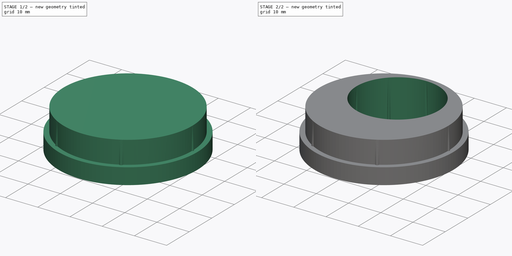
[diagram: build sequence overview — one tinted view per stage of 2, left to right]
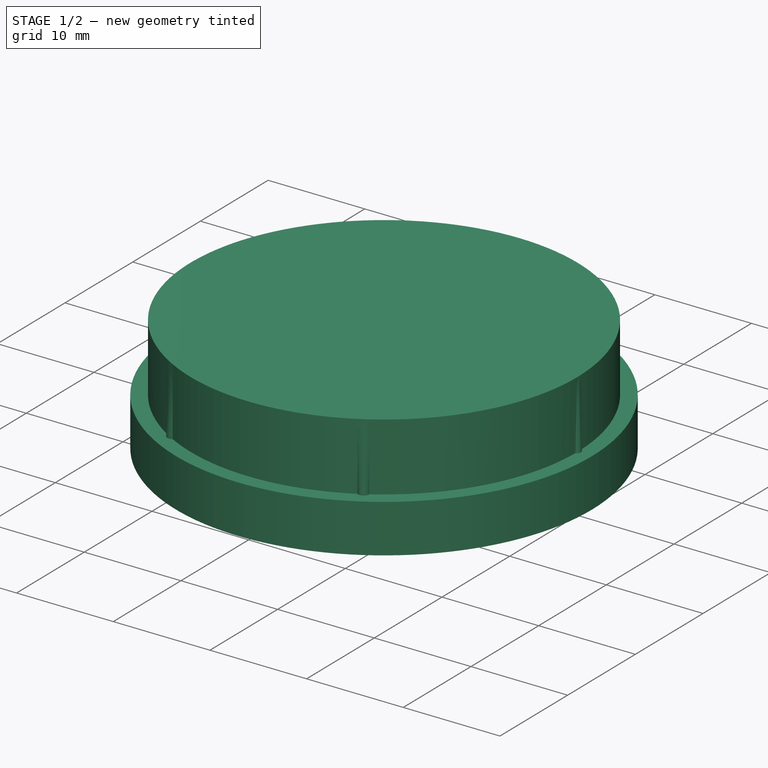
[diagram: stage 1 of 2 — iso view after this stage's code; geometry added in this stage tinted green]
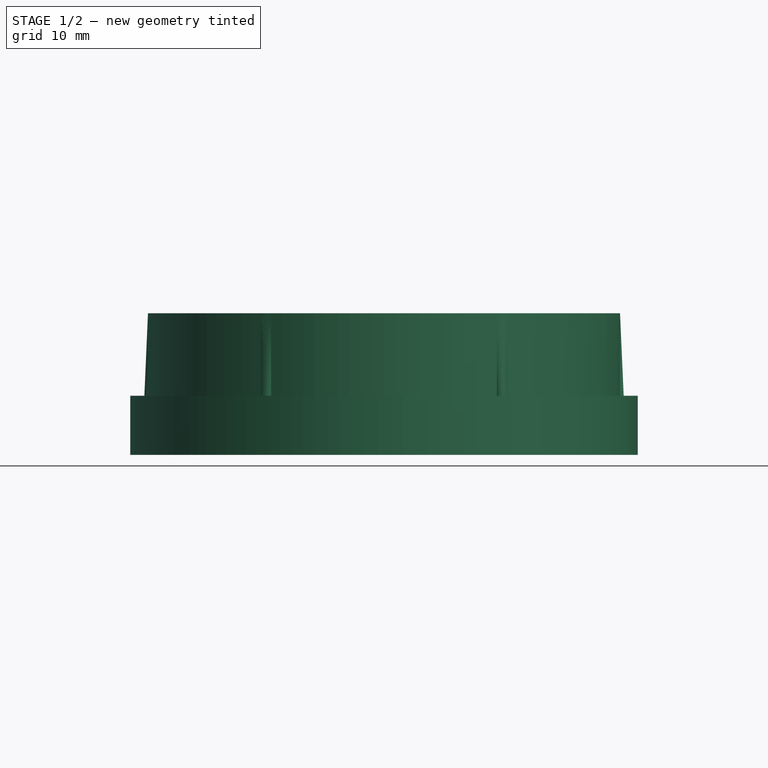
[diagram: stage 1 of 2 — front view after this stage's code; geometry added in this stage tinted green]
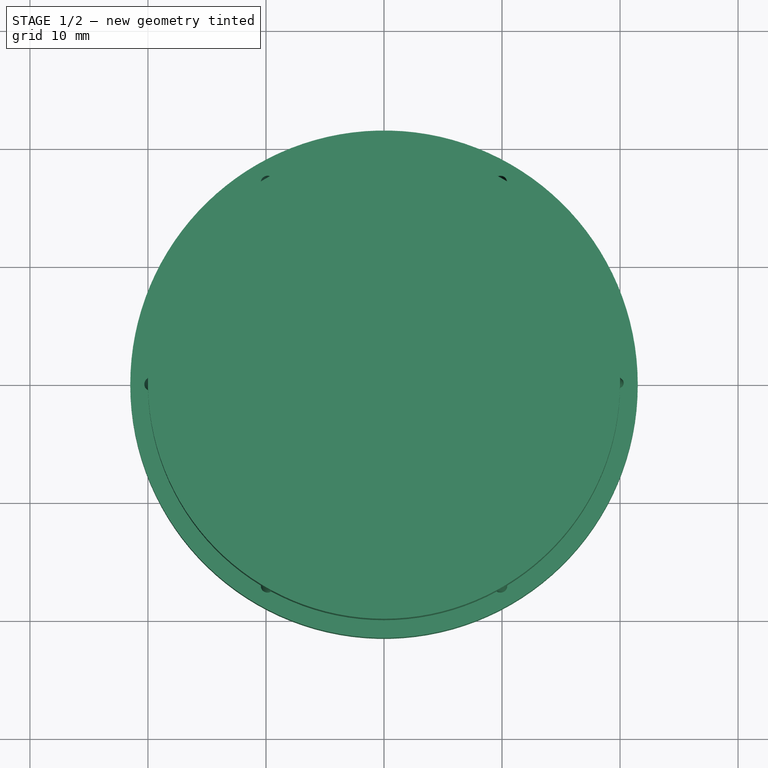
[diagram: stage 1 of 2 — top view after this stage's code; geometry added in this stage tinted green]
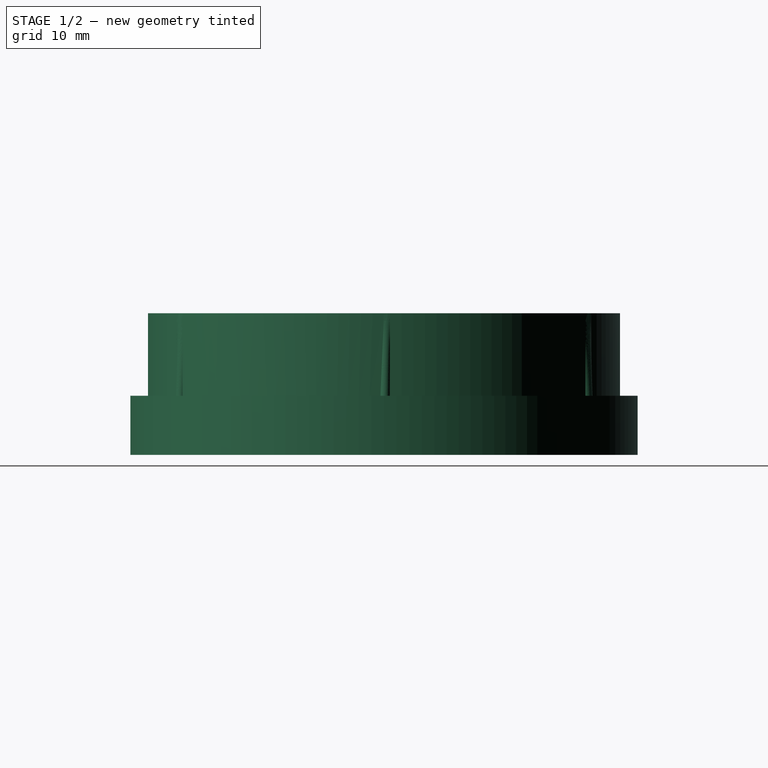
[diagram: stage 1 of 2 — right view after this stage's code; geometry added in this stage tinted green]
FCSTD DOCUMENT  (FreeCAD 1.0R39109 (Git))
Label: samlabox_castor_wheel
License: All rights reserved
LicenseURL: https://en.wikipedia.org/wiki/All_rights_reserved
objects: Sketcher::SketchObject×5, Spreadsheet::Sheet×1, PartDesign::Pad×1, PartDesign::AdditiveLoft×1, PartDesign::SubtractiveLoft×1, PartDesign::Line×1, PartDesign::PolarPattern×1, PartDesign::Body×1
note: 23 computed .brp shape members not serialized (recipe doc carries the construction recipe); baked Part::Feature solids carry a one-line shape summary decoded from their .brp

FEATURE [Spreadsheet::Sheet] Spreadsheet
  cells = A1='Bearing dia; B1(bearing_dia)=40; C1='Wheel hole dia; D1(wheel_hole_dia)=25.5; A2='Bearing thickness; B2(bearing_thi)=7; C2='Wheel offset; D2(wheel_offset)=6; A3='Bearing lip dia; B3(bearing_lip_dia)=43; C3='Notch depth; D3(WheelNotchDepth)=0.4; A4='Bearing lip thickness; B4(bearing_lip_thi)=5; A5='Notch thickness; B5(notch_thi)=0.5; A8='top height; B8(top_hei)==bearing_lip_thi + bearing_thi
FEATURE [Sketcher::SketchObject] Sketch
  ArcFitTolerance = 1e-06
  AttachmentSupport = -> [XY_Plane]
  FullyConstrained = true
  MakeInternals = false
  MapMode = 5
  expr: Constraints[1] = Spreadsheet.bearing_lip_dia
  sketch-geometry (1):
    g0: Circle CenterX=0 CenterY=0 CenterZ=0 NormalX=0 NormalY=0 NormalZ=1 AngleXU=0 Radius=21.5
  constraints (2):
    c: Coincident(g0,g-1)
    c: Diameter(g0) = 43
FEATURE [PartDesign::Pad] Pad  label="bearing_lip"
  Direction = (0,0,1)
  Length = 5
  Length2 = 10
  Profile = -> Sketch [Edge1]
  ReferenceAxis = -> Sketch [N_Axis]
  Refine = true
  Suppressed = false
  Type = 0
  expr: Length = Spreadsheet.bearing_lip_thi
FEATURE [Sketcher::SketchObject] Sketch001
  ArcFitTolerance = 1e-06
  AttachmentOffset = pos=(0,0,0.6) rot=(0,0,1;0rad)
  AttachmentSupport = -> [XY_Plane]
  FullyConstrained = true
  MakeInternals = false
  MapMode = 5
  Placement = pos=(0,0,0.6) rot=(0,0,1;0rad)
  expr: Constraints[1] = Spreadsheet.bearing_dia
  expr: Constraints[23] = Spreadsheet.notch_thi
  sketch-geometry (20):
    g0: Circle [constr] CenterX=0 CenterY=0 CenterZ=0 NormalX=0 NormalY=0 NormalZ=1 AngleXU=0 Radius=20
    g1: LineSegment [constr] StartX=10 StartY=-17.3205 StartZ=0 EndX=20 EndY=0 EndZ=0
    g2: LineSegment [constr] StartX=20 StartY=0 StartZ=0 EndX=10 EndY=17.3205 EndZ=0
    g3: LineSegment [constr] StartX=10 StartY=17.3205 StartZ=0 EndX=-10 EndY=17.3205 EndZ=0
    g4: LineSegment [constr] StartX=-10 StartY=17.3205 StartZ=0 EndX=-20 EndY=-3.6e-15 EndZ=0
    g5: LineSegment [constr] StartX=-20 StartY=-3.6e-15 StartZ=0 EndX=-10 EndY=-17.3205 EndZ=0
    g6: LineSegment [constr] StartX=-10 StartY=-17.3205 StartZ=0 EndX=10 EndY=-17.3205 EndZ=0
    g7: Circle [constr] CenterX=0 CenterY=0 CenterZ=0 NormalX=0 NormalY=0 NormalZ=1 AngleXU=0 Radius=20
    g8: ArcOfCircle CenterX=-20 CenterY=-3.6e-15 CenterZ=0 NormalX=0 NormalY=0 NormalZ=1 AngleXU=0 Radius=0.5 StartAngle=1.5583 EndAngle=4.72489
    g9: ArcOfCircle CenterX=-10 CenterY=-17.3205 CenterZ=0 NormalX=0 NormalY=0 NormalZ=1 AngleXU=0 Radius=0.5 StartAngle=2.60549 EndAngle=5.77209
    g10: ArcOfCircle CenterX=10 CenterY=-17.3205 CenterZ=0 NormalX=0 NormalY=0 NormalZ=1 AngleXU=0 Radius=0.5 StartAngle=3.65269 EndAngle=6.81928
    g11: ArcOfCircle CenterX=20 CenterY=0 CenterZ=0 NormalX=0 NormalY=0 NormalZ=1 AngleXU=0 Radius=0.5 StartAngle=4.69989 EndAngle=7.86648
    g12: ArcOfCircle CenterX=10 CenterY=17.3205 CenterZ=0 NormalX=0 NormalY=0 NormalZ=1 AngleXU=0 Radius=0.5 StartAngle=5.74709 EndAngle=8.91368
    g13: ArcOfCircle CenterX=-10 CenterY=17.3205 CenterZ=0 NormalX=0 NormalY=0 NormalZ=1 AngleXU=0 Radius=0.5 StartAngle=0.511098 EndAngle=3.67769
    g14: ArcOfCircle CenterX=5.262e-13 CenterY=3.352e-13 CenterZ=0 NormalX=0 NormalY=0 NormalZ=1 AngleXU=0 Radius=20 StartAngle=3.16659 EndAngle=4.16379
    g15: ArcOfCircle CenterX=5.236e-13 CenterY=-3.409e-13 CenterZ=0 NormalX=0 NormalY=0 NormalZ=1 AngleXU=0 Radius=20 StartAngle=2.1194 EndAngle=3.11659
    g16: ArcOfCircle CenterX=-5.46e-14 CenterY=-6.222e-13 CenterZ=0 NormalX=0 NormalY=0 NormalZ=1 AngleXU=0 Radius=20 StartAngle=1.0722 EndAngle=2.06939
    g17: ArcOfCircle CenterX=-5.443e-13 CenterY=-2.837e-13 CenterZ=0 NormalX=0 NormalY=0 NormalZ=1 AngleXU=0 Radius=20 StartAngle=0.0250007 EndAngle=1.0222
    g18: ArcOfCircle CenterX=-5.47e-13 CenterY=2.797e-13 CenterZ=0 NormalX=0 NormalY=0 NormalZ=1 AngleXU=0 Radius=20 StartAngle=5.26099 EndAngle=6.25818
    g19: ArcOfCircle CenterX=-5.79e-14 CenterY=6.22e-13 CenterZ=0 NormalX=0 NormalY=0 NormalZ=1 AngleXU=0 Radius=20 StartAngle=4.21379 EndAngle=5.21099
  constraints (60):
    c: Coincident(g0,g-1)
    c: Diameter(g0) = 40
    c: Coincident(g1,g2)
    c: Coincident(g2,g3)
    c: Coincident(g3,g4)
    c: Coincident(g4,g5)
    c: Coincident(g5,g6)
    c: Coincident(g6,g1)
    c: Equal(g1, g2-g6) x5
    c: PointOnObject(g1,g7)
    c: PointOnObject(g2,g7)
    c: PointOnObject(g3,g7)
    c: PointOnObject(g4,g7)
    c: PointOnObject(g5,g7)
    c: PointOnObject(g6,g7)
    c: Coincident(g7,g0)
    c: PointOnObject(g1,g-1)
    c: PointOnObject(g4,g0)
    c: Coincident(g8,g4)
    c: Radius(g8) = 0.5
    c: PointOnObject(g8,g0)
    c: PointOnObject(g8,g0)
    c: Coincident(g9,g5)
    c: PointOnObject(g9,g0)
    c: PointOnObject(g9,g0)
    c: Coincident(g10,g1)
    c: PointOnObject(g10,g0)
    c: PointOnObject(g10,g0)
    c: Coincident(g11,g1)
    c: PointOnObject(g11,g0)
    c: PointOnObject(g11,g0)
    c: Coincident(g12,g2)
    c: PointOnObject(g12,g0)
    c: PointOnObject(g12,g0)
    c: Coincident(g13,g3)
    c: PointOnObject(g13,g0)
    c: PointOnObject(g13,g0)
    c: Equal(g8,g13)
    c: Equal(g8,g12)
    c: Equal(g8,g11)
    c: Equal(g8,g10)
    c: Equal(g8,g9)
    c: Equal(g14,g0)
    c: Coincident(g14,g8)
    c: Coincident(g14,g9)
    c: Equal(g15,g0)
    c: Coincident(g15,g8)
    c: Coincident(g15,g13)
    c: Equal(g16,g0)
    c: Coincident(g16,g12)
    c: Coincident(g16,g13)
    c: Equal(g17,g0)
    c: Coincident(g17,g12)
    c: Coincident(g17,g11)
    c: Equal(g19,g0)
    c: Coincident(g19,g9)
    c: Coincident(g19,g10)
    c: Equal(g18,g0)
    c: Coincident(g18,g10)
    c: Coincident(g18,g11)
FEATURE [Sketcher::SketchObject] Sketch002
  ArcFitTolerance = 1e-06
  AttachmentOffset = pos=(0,0,12) rot=(0,0,1;0rad)
  AttachmentSupport = -> [XY_Plane]
  FullyConstrained = true
  MakeInternals = false
  MapMode = 5
  Placement = pos=(0,0,12) rot=(0,0,1;0rad)
  expr: .AttachmentOffset.Base.z = Spreadsheet.top_hei
  expr: Constraints[1] = Spreadsheet.bearing_dia
  sketch-geometry (1):
    g0: Circle CenterX=0 CenterY=0 CenterZ=0 NormalX=0 NormalY=0 NormalZ=1 AngleXU=0 Radius=20
  constraints (2):
    c: Coincident(g0,g-1)
    c: Diameter(g0) = 40
FEATURE [PartDesign::AdditiveLoft] AdditiveLoft  label="top_body"
  BaseFeature = -> Pad
  Closed = false
  Profile = -> Sketch002
  Refine = true
  Ruled = false
  Sections = -> [Sketch001]
  Suppressed = false
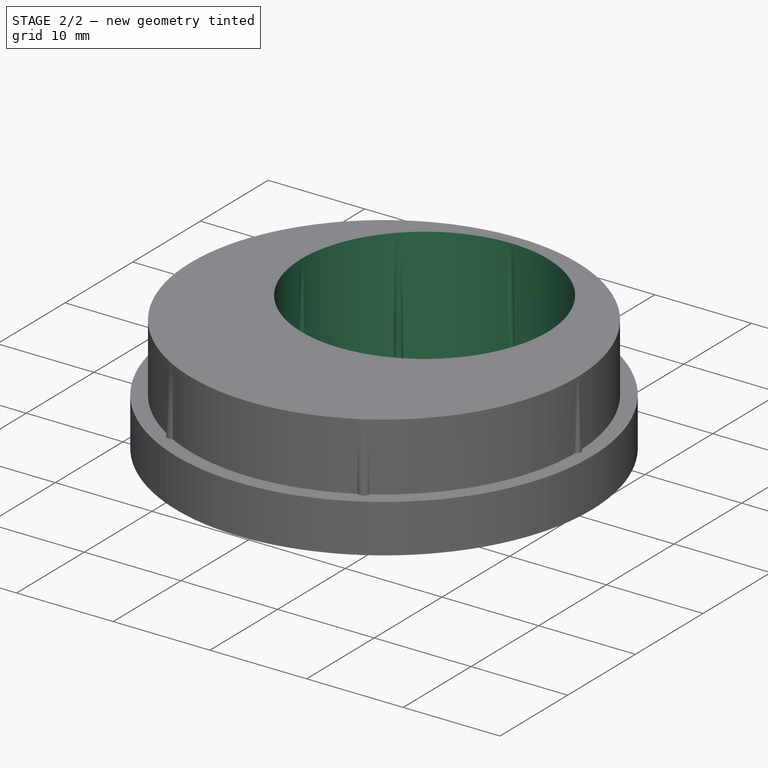
[diagram: stage 2 of 2 — iso view after this stage's code; geometry added in this stage tinted green]
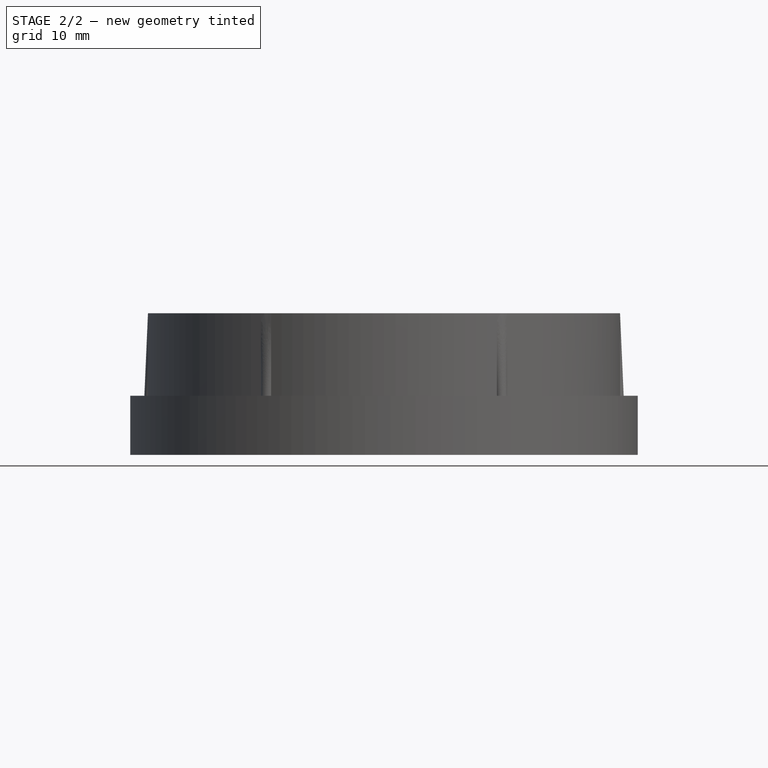
[diagram: stage 2 of 2 — front view after this stage's code; geometry added in this stage tinted green]
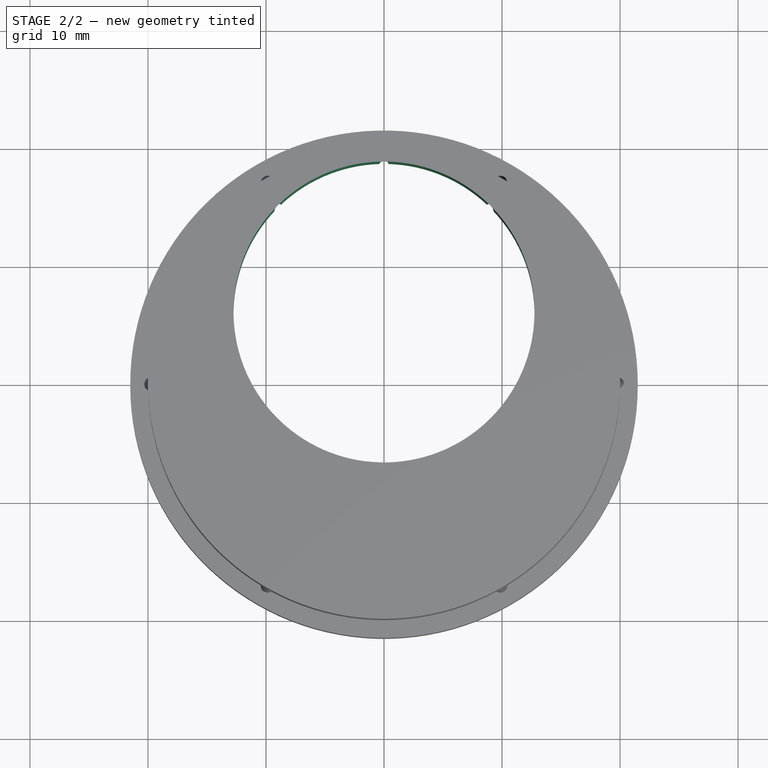
[diagram: stage 2 of 2 — top view after this stage's code; geometry added in this stage tinted green]
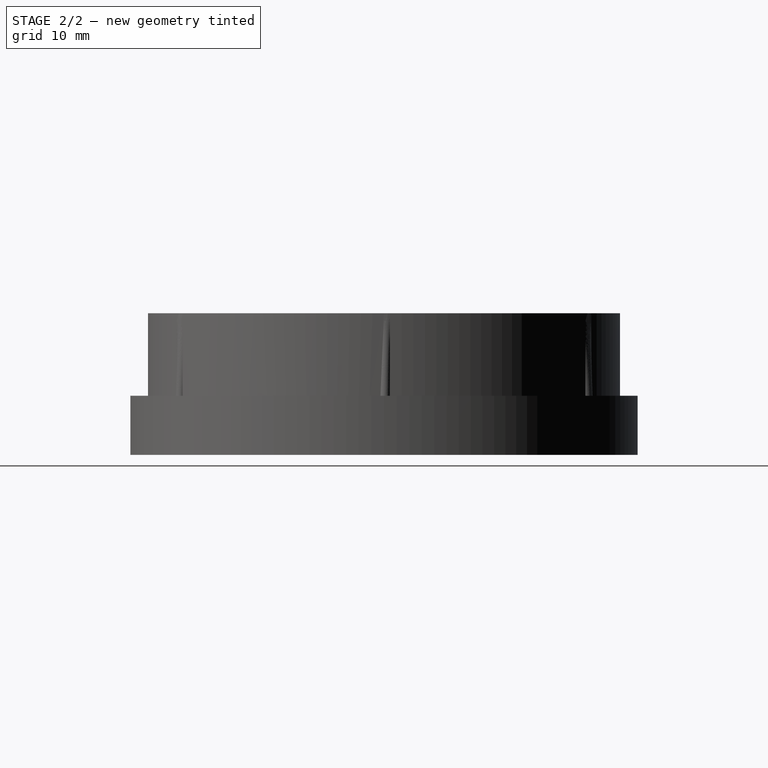
[diagram: stage 2 of 2 — right view after this stage's code; geometry added in this stage tinted green]
FEATURE [Sketcher::SketchObject] Sketch003
  ArcFitTolerance = 1e-06
  AttachmentOffset = pos=(0,0,12) rot=(0,0,1;0rad)
  AttachmentSupport = -> [XY_Plane]
  FullyConstrained = true
  MakeInternals = false
  MapMode = 5
  Placement = pos=(0,0,12) rot=(0,0,1;0rad)
  expr: .AttachmentOffset.Base.z = Spreadsheet.top_hei
  expr: Constraints[1] = Spreadsheet.wheel_offset
  expr: Constraints[9] = Spreadsheet.wheel_hole_dia
  sketch-geometry (4):
    g0: GeomPoint X=0 Y=6 Z=0
    g1: ArcOfCircle CenterX=0 CenterY=6 CenterZ=0 NormalX=0 NormalY=0 NormalZ=1 AngleXU=0 Radius=12.75 StartAngle=2.35619 EndAngle=3.14159
    g2: LineSegment StartX=0 StartY=6 StartZ=0 EndX=-12.75 EndY=6 EndZ=0
    g3: LineSegment StartX=0 StartY=6 StartZ=0 EndX=-9.01561 EndY=15.0156 EndZ=0
  constraints (10):
    c: PointOnObject(g0,g-2)
    c: DistanceY(g-1,g0) = 6
    c: Coincident(g1,g0)
    c: Horizontal(g1,g0)
    c: Coincident(g2,g0)
    c: Coincident(g2,g1)
    c: Coincident(g3,g0)
    c: Coincident(g3,g1)
    c: Angle(g3,g2) = 0.785398
    c: Diameter(g1) = 25.5
FEATURE [Sketcher::SketchObject] Sketch004
  ArcFitTolerance = 1e-06
  AttachmentSupport = -> [AdditiveLoft]
  FullyConstrained = true
  MakeInternals = false
  MapMode = 5
  Placement = pos=(0,0,0) rot=(1,0,0;3.14159rad)
  expr: Constraints[14] = Spreadsheet.WheelNotchDepth
  expr: Constraints[1] = Spreadsheet.wheel_offset
  expr: Constraints[9] = Spreadsheet.wheel_hole_dia
  sketch-geometry (11):
    g0: GeomPoint X=0 Y=-6 Z=0
    g1: ArcOfCircle [constr] CenterX=0 CenterY=-6 CenterZ=0 NormalX=0 NormalY=0 NormalZ=1 AngleXU=0 Radius=12.75 StartAngle=3.14159 EndAngle=3.92699
    g2: LineSegment [constr] StartX=0 StartY=-6 StartZ=0 EndX=-12.75 EndY=-6 EndZ=0
    g3: LineSegment [constr] StartX=0 StartY=-6 StartZ=0 EndX=-9.01561 EndY=-15.0156 EndZ=0
    g4: LineSegment [constr] StartX=-12.75 StartY=-6 StartZ=0 EndX=-13.15 EndY=-6 EndZ=0
    g5: LineSegment [constr] StartX=-9.01561 StartY=-15.0156 StartZ=0 EndX=-9.29845 EndY=-15.2985 EndZ=0
    g6: ArcOfCircle CenterX=-12.75 CenterY=-6 CenterZ=0 NormalX=0 NormalY=0 NormalZ=1 AngleXU=0 Radius=0.4 StartAngle=3.14159 EndAngle=4.72808
    g7: ArcOfCircle CenterX=-9.01561 CenterY=-15.0156 CenterZ=0 NormalX=0 NormalY=0 NormalZ=1 AngleXU=0 Radius=0.4 StartAngle=2.34051 EndAngle=3.92699
    g8: ArcOfCircle CenterX=0 CenterY=-6 CenterZ=0 NormalX=0 NormalY=0 NormalZ=1 AngleXU=0 Radius=12.75 StartAngle=3.17297 EndAngle=3.89562
    g9: LineSegment StartX=0 StartY=-6 StartZ=0 EndX=-13.15 EndY=-6 EndZ=0
    g10: LineSegment StartX=0 StartY=-6 StartZ=0 EndX=-9.29845 EndY=-15.2985 EndZ=0
  constraints (28):
    c: PointOnObject(g0,g-2)
    c: DistanceY(g0,g-1) = 6
    c: Coincident(g1,g0)
    c: Horizontal(g1,g0)
    c: Coincident(g2,g0)
    c: Coincident(g2,g1)
    c: Coincident(g3,g0)
    c: Coincident(g3,g1)
    c: Angle(g2,g3) = 0.785398
    c: Diameter(g1) = 25.5
    c: Coincident(g4,g1)
    c: Coincident(g5,g1)
    c: Parallel(g3,g5)
    c: Parallel(g4,g2)
    c: Distance(g4,g1) = 0.4
    c: Equal(g4,g5)
    c: Coincident(g6,g1)
    c: Coincident(g6,g4)
    c: PointOnObject(g6,g1)
    c: Coincident(g7,g1)
    c: Coincident(g7,g5)
    c: Coincident(g8,g0)
    c: Coincident(g8,g6)
    c: Coincident(g8,g7)
    c: Coincident(g9,g0)
    c: Coincident(g9,g4)
    c: Coincident(g10,g0)
    c: Coincident(g10,g5)
FEATURE [PartDesign::SubtractiveLoft] SubtractiveLoft
  BaseFeature = -> AdditiveLoft
  Closed = false
  Profile = -> Sketch004
  Refine = true
  Ruled = false
  Sections = -> [Sketch003]
  Suppressed = false
FEATURE [PartDesign::Line] DatumLine
  AttacherType = Attacher::AttachEngineLine
  AttachmentOffset = pos=(0,6,0) rot=(0,0,1;0rad)
  AttachmentSupport = -> [Z_Axis]
  Length = 20
  MapMode = 29
  Placement = pos=(0,6,0) rot=(0,0,1;0rad)
  ResizeMode = 0
  expr: .AttachmentOffset.Base.y = Spreadsheet.wheel_offset
FEATURE [PartDesign::PolarPattern] PolarPattern
  Angle = 360
  Axis = -> DatumLine
  BaseFeature = -> SubtractiveLoft
  Mode = 0
  Occurrences = 8
  Offset = 120
  Originals = -> [SubtractiveLoft]
  Refine = true
  Suppressed = false
  TransformMode = 0
FEATURE [PartDesign::Body] Body
  AllowCompound = false
  Group = -> [Sketch,Pad,Sketch001,Sketch002,AdditiveLoft,Sketch003,Sketch004,SubtractiveLoft,DatumLine,PolarPattern]
  Origin = -> Origin
  Tip = -> PolarPattern
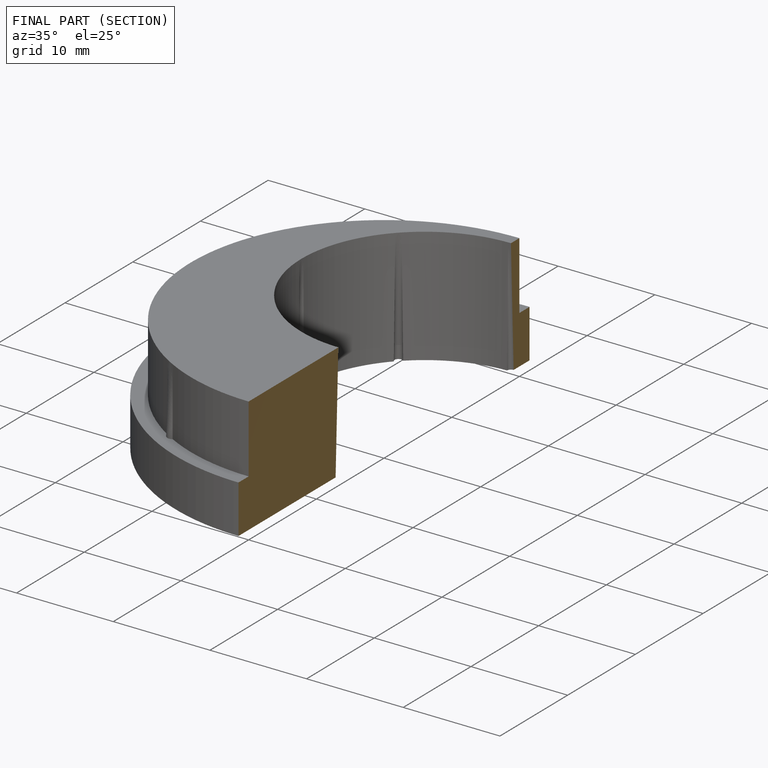
[diagram: finished part — half-section view (interior)]
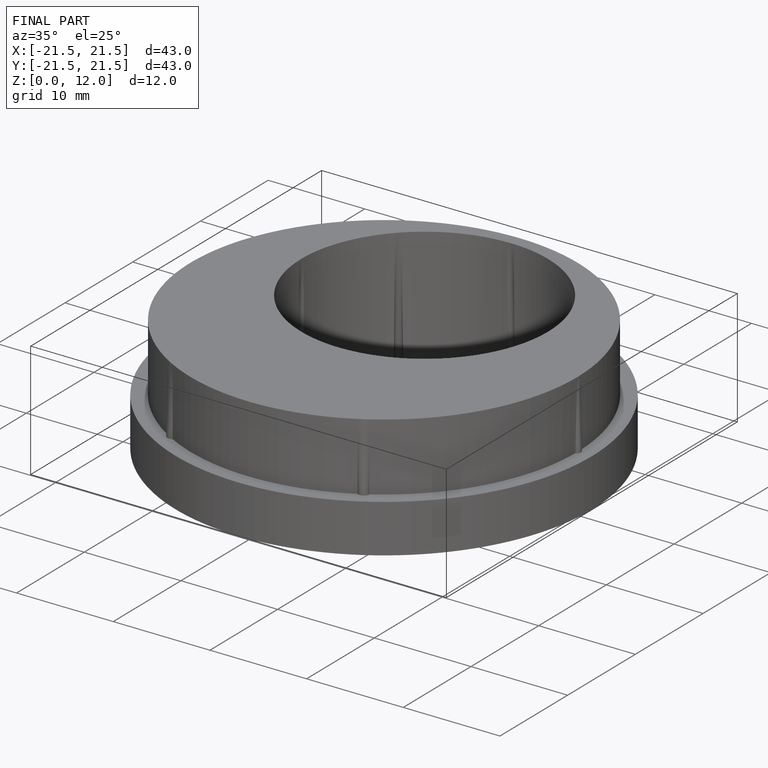
[diagram: finished part — iso view with bounding-box wireframe]
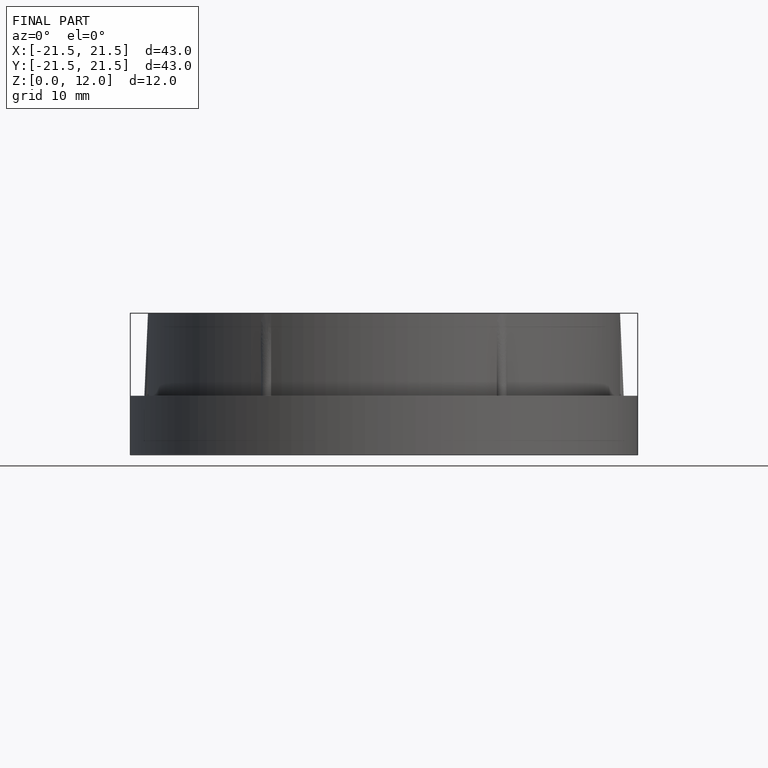
[diagram: finished part — front view with bounding-box wireframe]
